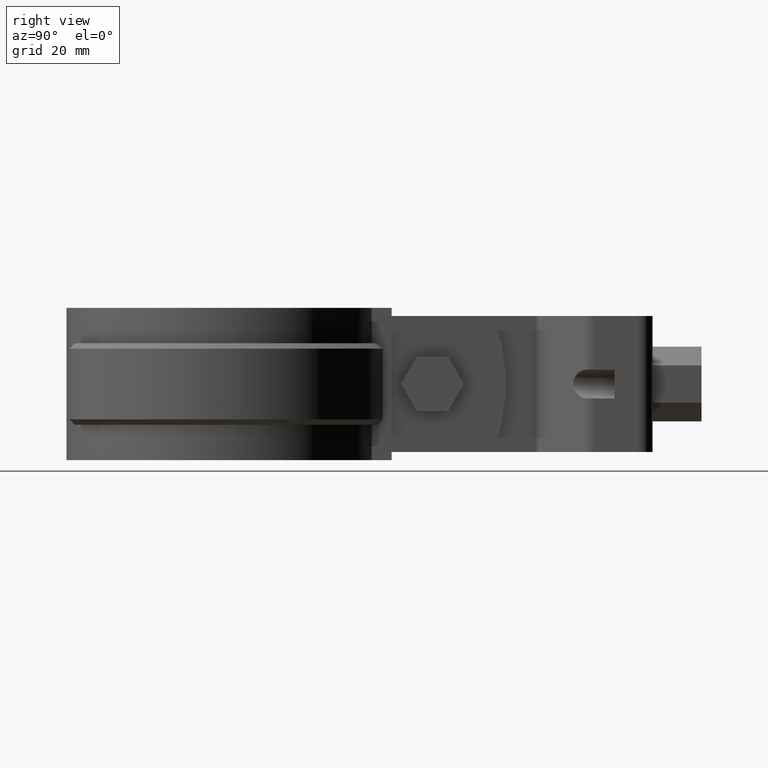
[diagram: clean part render]
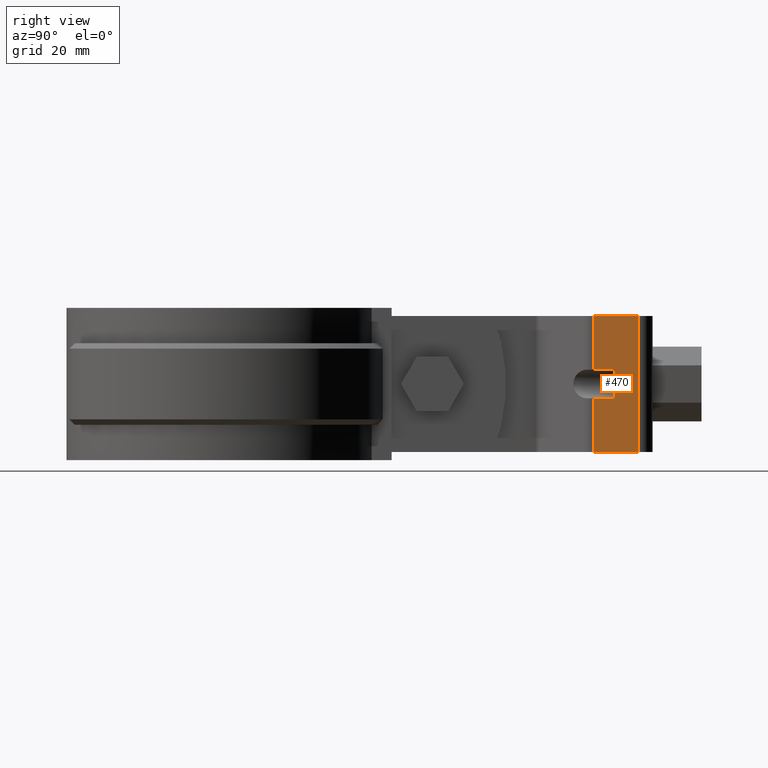
[diagram: same view with one face highlighted and labeled with its STEP entity id]
A machine part, right view. The second image highlights one B-rep face of the part: STEP entity #470.
In plain terms, the highlighted planar face has unit normal (1, 0, -0).
Its self-contained STEP definition (entity closure, byte-faithful):
#470 = ADVANCED_FACE( '', ( #872 ), #873, .T. );
#872 = FACE_OUTER_BOUND( '', #2005, .T. );
#873 = PLANE( '', #2006 );
#2005 = EDGE_LOOP( '', ( #4859, #4860, #4861, #4862, #4863, #4864, #4865, #4866 ) );
#2006 = AXIS2_PLACEMENT_3D( '', #4867, #4868, #4869 );
#4859 = ORIENTED_EDGE( '', *, *, #5983, .T. );
#4860 = ORIENTED_EDGE( '', *, *, #5984, .T. );
#4861 = ORIENTED_EDGE( '', *, *, #5985, .F. );
#4862 = ORIENTED_EDGE( '', *, *, #5944, .F. );
#4863 = ORIENTED_EDGE( '', *, *, #5981, .T. );
#4864 = ORIENTED_EDGE( '', *, *, #5969, .T. );
#4865 = ORIENTED_EDGE( '', *, *, #5979, .F. );
#4866 = ORIENTED_EDGE( '', *, *, #5965, .F. );
#4867 = CARTESIAN_POINT( '', ( 12.2499999993857, 68.5003329136700, -6.61147803171502E-008 ) );
#4868 = DIRECTION( '', ( 1.00000000000000, 3.46775217174125E-012, -2.03765905737924E-012 ) );
#4869 = DIRECTION( '', ( 3.46775217277812E-012, -1.00000000000000, 5.08856068393042E-010 ) );
#5944 = EDGE_CURVE( '', #6903, #6905, #6906, .T. );
#5965 = EDGE_CURVE( '', #6942, #6944, #6945, .T. );
#5969 = EDGE_CURVE( '', #6952, #6950, #6953, .T. );
#5979 = EDGE_CURVE( '', #6944, #6950, #6969, .T. );
#5981 = EDGE_CURVE( '', #6903, #6952, #6971, .T. );
#5983 = EDGE_CURVE( '', #6942, #6973, #6974, .T. );
#5984 = EDGE_CURVE( '', #6973, #6975, #6976, .T. );
#5985 = EDGE_CURVE( '', #6905, #6975, #6977, .T. );
#6903 = VERTEX_POINT( '', #10527 );
#6905 = VERTEX_POINT( '', #10529 );
#6906 = LINE( '', #10530, #10531 );
#6942 = VERTEX_POINT( '', #10577 );
#6944 = VERTEX_POINT( '', #10588 );
#6945 = LINE( '', #10589, #10590 );
#6950 = VERTEX_POINT( '', #10595 );
#6952 = VERTEX_POINT( '', #10597 );
#6953 = LINE( '', #10598, #10599 );
#6969 = LINE( '', #10636, #10637 );
#6971 = LINE( '', #10640, #10641 );
#6973 = VERTEX_POINT( '', #10644 );
#6974 = LINE( '', #10645, #10646 );
#6975 = VERTEX_POINT( '', #10647 );
#6976 = LINE( '', #10648, #10649 );
#6977 = LINE( '', #10650, #10651 );
#10527 = CARTESIAN_POINT( '', ( 12.2499999993857, 68.5003329136700, -6.61147803171502E-008 ) );
#10529 = CARTESIAN_POINT( '', ( 12.2499999993569, 76.8045271145559, -7.03404279267517E-008 ) );
#10530 = CARTESIAN_POINT( '', ( 12.2499999993857, 68.5003329136700, -6.61147803171502E-008 ) );
#10531 = VECTOR( '', #11613, 1000.00000000000 );
#10577 = CARTESIAN_POINT( '', ( 12.2499999993548, 68.5003329059608, -15.1500000661148 ) );
#10588 = CARTESIAN_POINT( '', ( 12.2499999993413, 72.4045271068464, -15.1500000681014 ) );
#10589 = CARTESIAN_POINT( '', ( 12.2499999993759, 62.4045271068464, -15.1500000630129 ) );
#10590 = VECTOR( '', #11651, 1000.00000000000 );
#10595 = CARTESIAN_POINT( '', ( 12.2499999993521, 72.4045271095434, -9.85000006810148 ) );
#10597 = CARTESIAN_POINT( '', ( 12.2499999993656, 68.5003329086577, -9.85000006611481 ) );
#10598 = CARTESIAN_POINT( '', ( 12.2499999993867, 62.4045271095433, -9.85000006301293 ) );
#10599 = VECTOR( '', #11661, 1000.00000000000 );
#10636 = CARTESIAN_POINT( '', ( 12.2499999993380, 72.4045271060325, -16.7500000681014 ) );
#10637 = VECTOR( '', #11672, 1000.00000000000 );
#10640 = CARTESIAN_POINT( '', ( 12.2499999993857, 68.5003329136700, -6.61147803171502E-008 ) );
#10641 = VECTOR( '', #11674, 1000.00000000000 );
#10644 = CARTESIAN_POINT( '', ( 12.2499999993347, 68.5003329009486, -25.0000000661148 ) );
#10645 = CARTESIAN_POINT( '', ( 12.2499999993857, 68.5003329136700, -6.61147803171502E-008 ) );
#10646 = VECTOR( '', #11676, 1000.00000000000 );
#10647 = CARTESIAN_POINT( '', ( 12.2499999993059, 76.8045271018345, -25.0000000703404 ) );
#10648 = CARTESIAN_POINT( '', ( 12.2499999993347, 68.5003329009486, -25.0000000661148 ) );
#10649 = VECTOR( '', #11677, 1000.00000000000 );
#10650 = CARTESIAN_POINT( '', ( 12.2499999993569, 76.8045271145559, -7.03404279267517E-008 ) );
#10651 = VECTOR( '', #11678, 1000.00000000000 );
#11613 = DIRECTION( '', ( -3.46775217277812E-012, 1.00000000000000, -5.08856068393042E-010 ) );
#11651 = DIRECTION( '', ( -3.46775217277812E-012, 1.00000000000000, -5.08856068393042E-010 ) );
#11661 = DIRECTION( '', ( -3.46775217277812E-012, 1.00000000000000, -5.08856068393042E-010 ) );
#11672 = DIRECTION( '', ( 2.03766090615063E-012, 5.08856068393049E-010, 1.00000000000000 ) );
#11674 = DIRECTION( '', ( -2.03765905561465E-012, -5.08856068393049E-010, -1.00000000000000 ) );
#11676 = DIRECTION( '', ( -2.03765905561465E-012, -5.08856068393049E-010, -1.00000000000000 ) );
#11677 = DIRECTION( '', ( -3.46775217277812E-012, 1.00000000000000, -5.08856068393042E-010 ) );
#11678 = DIRECTION( '', ( -2.03765905561465E-012, -5.08856068393049E-010, -1.00000000000000 ) );